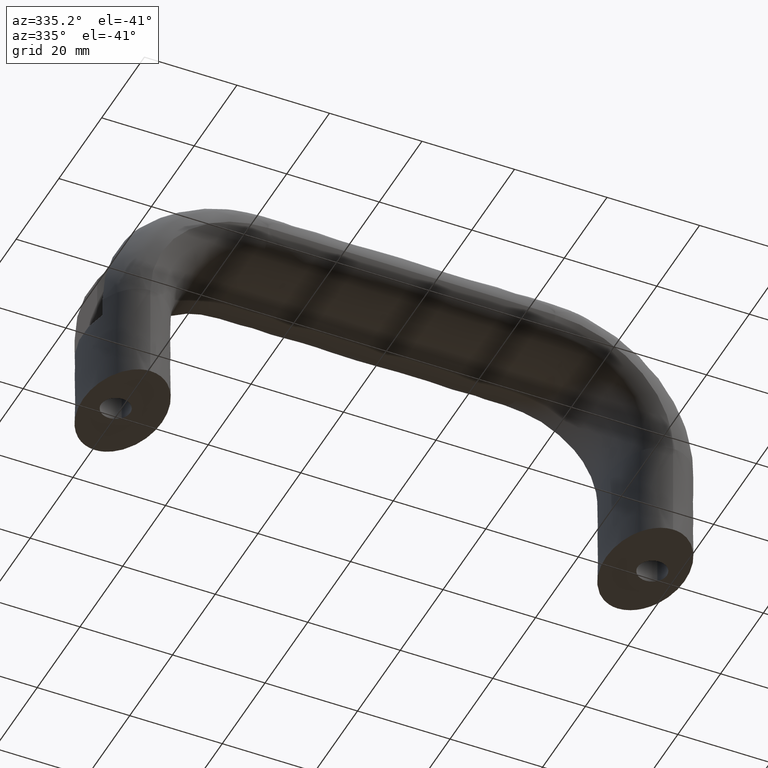
[diagram: clean part render]
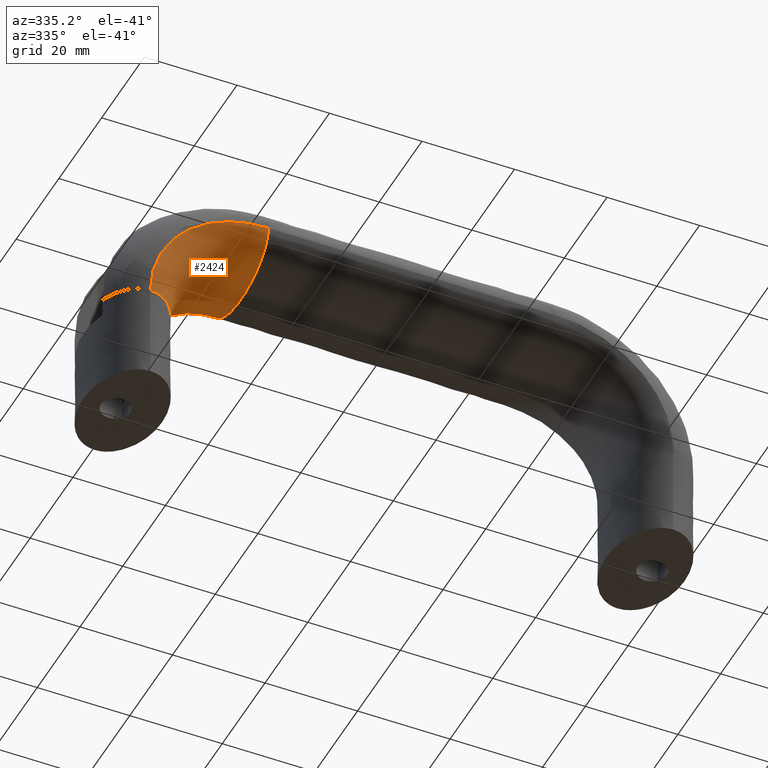
[diagram: same view with one face highlighted and labeled with its STEP entity id]
A machine part, auxiliary view. The second image highlights one B-rep face of the part: STEP entity #2424.
In plain terms, the highlighted face is a freeform B-spline surface patch.
Its self-contained STEP definition (entity closure, byte-faithful):
#1974=CARTESIAN_POINT('',(27.0,13.0,46.500000000000000));
#1975=VERTEX_POINT('',#1974);
#1981=CARTESIAN_POINT('',(27.0,-13.0,46.500000000000000));
#1982=VERTEX_POINT('',#1981);
#2069=CARTESIAN_POINT('',(27.0,-13.0,46.500000000000000));
#2070=CARTESIAN_POINT('',(27.0,-13.0,45.387352601853600));
#2071=CARTESIAN_POINT('',(27.0,-12.661644796688099,44.275142982946100));
#2072=CARTESIAN_POINT('',(27.0,-11.359223048605340,42.219238666847353));
#2073=CARTESIAN_POINT('',(27.0,-10.395668951176340,41.276352880213253));
#2074=CARTESIAN_POINT('',(27.0,-6.785826563922671,38.916071319316600));
#2075=CARTESIAN_POINT('',(27.0,-3.403392041388941,38.0));
#2076=CARTESIAN_POINT('',(27.0,3.403392041388945,38.0));
#2077=CARTESIAN_POINT('',(27.0,6.785826563922680,38.916071319316600));
#2078=CARTESIAN_POINT('',(27.0,10.395668951176340,41.276352880213253));
#2079=CARTESIAN_POINT('',(27.0,11.359223048605340,42.219238666847353));
#2080=CARTESIAN_POINT('',(27.0,12.661644796688099,44.275142982946150));
#2081=CARTESIAN_POINT('',(27.0,13.0,45.387352601853600));
#2082=CARTESIAN_POINT('',(27.0,13.0,46.500000000000000));
#2083=B_SPLINE_CURVE_WITH_KNOTS('',3,(#2069,#2070,#2071,#2072,#2073,#2074,#2075,#2076,#2077,#2078,#2079,#2080,#2081,#2082),.UNSPECIFIED.,.F.,.U.,(4,2,2,2,2,2,4),(0.0,0.062500000000000,0.125000000000000,0.250000000000000,0.375000000000000,0.437500000000000,0.500000000000000),.UNSPECIFIED.);
#2084=EDGE_CURVE('',#1982,#1975,#2083,.T.);
#2216=CARTESIAN_POINT('',(1.499999999999997,13.0,21.0));
#2217=VERTEX_POINT('',#2216);
#2218=CARTESIAN_POINT('',(1.499999999999995,13.0,21.0));
#2219=CARTESIAN_POINT('',(1.499999999999995,13.0,24.338487965230129));
#2220=CARTESIAN_POINT('',(2.163696795447097,13.0,27.674571173055529));
#2221=CARTESIAN_POINT('',(4.718447046477275,13.0,33.842283877564071));
#2222=CARTESIAN_POINT('',(6.608495612154606,13.0,36.670941452656983));
#2223=CARTESIAN_POINT('',(11.329058547331501,13.0,41.391504387857033));
#2224=CARTESIAN_POINT('',(14.157716122457829,13.0,43.281552953528532));
#2225=CARTESIAN_POINT('',(20.325428826922629,13.0,45.836303204547150));
#2226=CARTESIAN_POINT('',(23.661512034786298,13.0,46.500000000000000));
#2227=CARTESIAN_POINT('',(27.0,13.0,46.500000000000000));
#2228=B_SPLINE_CURVE_WITH_KNOTS('',3,(#2218,#2219,#2220,#2221,#2222,#2223,#2224,#2225,#2226,#2227),.UNSPECIFIED.,.F.,.U.,(4,2,2,2,4),(0.114061865830815,0.168452139364120,0.222842412897425,0.277232686430730,0.331622959964035),.UNSPECIFIED.);
#2229=EDGE_CURVE('',#2217,#1975,#2228,.T.);
#2245=CARTESIAN_POINT('',(1.499999999999996,-13.0,21.0));
#2246=VERTEX_POINT('',#2245);
#2258=CARTESIAN_POINT('',(1.499999999999996,-13.0,21.0));
#2259=CARTESIAN_POINT('',(1.499999999999996,-13.0,24.338487965230119));
#2260=CARTESIAN_POINT('',(2.163696795446736,-13.0,27.674571173055519));
#2261=CARTESIAN_POINT('',(4.718447046477645,-13.0,33.842283877564078));
#2262=CARTESIAN_POINT('',(6.608495612154606,-13.0,36.670941452656983));
#2263=CARTESIAN_POINT('',(11.329058547331501,-13.0,41.391504387857019));
#2264=CARTESIAN_POINT('',(14.157716122460730,-13.0,43.281552953528518));
#2265=CARTESIAN_POINT('',(20.325428826919730,-13.0,45.836303204547150));
#2266=CARTESIAN_POINT('',(23.661512034788469,-13.0,46.500000000000000));
#2267=CARTESIAN_POINT('',(27.0,-13.0,46.500000000000000));
#2268=B_SPLINE_CURVE_WITH_KNOTS('',3,(#2258,#2259,#2260,#2261,#2262,#2263,#2264,#2265,#2266,#2267),.UNSPECIFIED.,.F.,.U.,(4,2,2,2,4),(0.114061865830815,0.168452139364120,0.222842412897425,0.277232686430730,0.331622959964035),.UNSPECIFIED.);
#2269=EDGE_CURVE('',#2246,#1982,#2268,.T.);
#2275=CARTESIAN_POINT('',(1.232964624444863,-13.0,20.595186176466129));
#2276=CARTESIAN_POINT('',(1.321978819336903,-12.999001277163620,20.596584636787920));
#2277=CARTESIAN_POINT('',(2.523570531962558,-13.027045414409230,20.615462281360671));
#2278=CARTESIAN_POINT('',(4.837471083550229,-12.323036565618350,20.651814889098741));
#2279=CARTESIAN_POINT('',(6.723728010842493,-10.395617706442160,20.681448988162352));
#2280=CARTESIAN_POINT('',(9.083928680683410,-6.785826563922671,20.718528995370558));
#2281=CARTESIAN_POINT('',(10.0,-3.403392041388941,20.732920962781591));
#2282=CARTESIAN_POINT('',(10.0,3.403392041388945,20.732920962781591));
#2283=CARTESIAN_POINT('',(9.083928680683400,6.785826563922680,20.718528995370558));
#2284=CARTESIAN_POINT('',(6.723728010842484,10.395617706442160,20.681448988162352));
#2285=CARTESIAN_POINT('',(4.837471083550216,12.323036565618350,20.651814889097690));
#2286=CARTESIAN_POINT('',(2.523570531962559,13.027045414409240,20.615462281360710));
#2287=CARTESIAN_POINT('',(1.321978819336902,12.999001277163620,20.596584636787920));
#2288=CARTESIAN_POINT('',(1.232964624444863,13.0,20.595186176466129));
#2289=CARTESIAN_POINT('',(1.233479681402849,-13.0,20.730122251449998));
#2290=CARTESIAN_POINT('',(1.322492096991225,-12.999001277163620,20.731054564778109));
#2291=CARTESIAN_POINT('',(2.524059791014692,-13.027045414409240,20.743639748185991));
#2292=CARTESIAN_POINT('',(4.837914090072269,-12.323036565618350,20.767874987597121));
#2293=CARTESIAN_POINT('',(6.724133312997660,-10.395617706442160,20.787631190252881));
#2294=CARTESIAN_POINT('',(9.084286804815980,-6.785826563922671,20.812351365997412));
#2295=CARTESIAN_POINT('',(10.000339812794071,-3.403392041388941,20.821946077285141));
#2296=CARTESIAN_POINT('',(10.000339812794071,3.403392041388945,20.821946077285141));
#2297=CARTESIAN_POINT('',(9.084286804815971,6.785826563922680,20.812351365997412));
#2298=CARTESIAN_POINT('',(6.724133312997653,10.395617706442160,20.787631190252881));
#2299=CARTESIAN_POINT('',(4.837914090072255,12.323036565618350,20.767874987596400));
#2300=CARTESIAN_POINT('',(2.524059791014693,13.027045414409240,20.743639748186020));
#2301=CARTESIAN_POINT('',(1.322492096991225,12.999001277163620,20.731054564778098));
#2302=CARTESIAN_POINT('',(1.233479681402849,13.0,20.730122251449998));
#2303=CARTESIAN_POINT('',(1.206122981646883,-13.0,24.238309881202060));
#2304=CARTESIAN_POINT('',(1.295229903047340,-12.999001277163620,24.227122891985609));
#2305=CARTESIAN_POINT('',(2.498073319451271,-13.027045414409230,24.076111094956630));
#2306=CARTESIAN_POINT('',(4.814384272203948,-12.323036565618350,23.785308256712501));
#2307=CARTESIAN_POINT('',(6.702606122271325,-10.395617706442160,23.548250156814749));
#2308=CARTESIAN_POINT('',(9.065265424327974,-6.785826563922671,23.251628483449359));
#2309=CARTESIAN_POINT('',(9.982291019479703,-3.403392041388941,23.136499879713330));
#2310=CARTESIAN_POINT('',(9.982291019479703,3.403392041388945,23.136499879713330));
#2311=CARTESIAN_POINT('',(9.065265424329533,6.785826563922680,23.251628483450901));
#2312=CARTESIAN_POINT('',(6.702606122271267,10.395617706442160,23.548250156814440));
#2313=CARTESIAN_POINT('',(4.814384272203266,12.323036565618340,23.785308256715641));
#2314=CARTESIAN_POINT('',(2.498073319451431,13.027045414409240,24.076111094956840));
#2315=CARTESIAN_POINT('',(1.295229903047659,12.999001277163620,24.227122891985609));
#2316=CARTESIAN_POINT('',(1.206122981647196,13.0,24.238309881202060));
#2317=CARTESIAN_POINT('',(2.574424561504448,-13.0,31.116963914495930));
#2318=CARTESIAN_POINT('',(2.658804580421831,-12.999001277163620,31.082014088702088));
#2319=CARTESIAN_POINT('',(3.797840119251112,-13.027045414409230,30.610230671659480));
#2320=CARTESIAN_POINT('',(5.991276486928670,-12.323036565618350,29.701719155256281));
#2321=CARTESIAN_POINT('',(7.779332823344952,-10.395617706442151,28.961114231614719));
#2322=CARTESIAN_POINT('',(10.016658874675469,-6.785826563922669,28.034423804886860));
#2323=CARTESIAN_POINT('',(10.885038522964869,-3.403392041388940,27.674744845096100));
#2324=CARTESIAN_POINT('',(10.885038522964869,3.403392041388945,27.674744845096100));
#2325=CARTESIAN_POINT('',(10.016658874672890,6.785826563922683,28.034423804879239));
#2326=CARTESIAN_POINT('',(7.779332823345706,10.395617706442151,28.961114231616211));
#2327=CARTESIAN_POINT('',(5.991276486929371,12.323036565618340,29.701719155255990));
#2328=CARTESIAN_POINT('',(3.797840119249886,13.027045414409249,30.610230671657909));
#2329=CARTESIAN_POINT('',(2.658804580421023,12.999001277163620,31.082014088702149));
#2330=CARTESIAN_POINT('',(2.574424561503700,13.0,31.116963914495930));
#2331=CARTESIAN_POINT('',(8.305599756709656,-13.0,39.694394238583172));
#2332=CARTESIAN_POINT('',(8.370180992478209,-12.999001277163620,39.629813023558327));
#2333=CARTESIAN_POINT('',(9.241955182928800,-13.027045414409230,38.758039113123729));
#2334=CARTESIAN_POINT('',(10.920727397275330,-12.323036565618350,37.079267438011613));
#2335=CARTESIAN_POINT('',(12.289237256734239,-10.395617706442160,35.710758018116252));
#2336=CARTESIAN_POINT('',(14.001600954511680,-6.785826563922671,33.998394870353053));
#2337=CARTESIAN_POINT('',(14.666225489122390,-3.403392041388940,33.333770549227047));
#2338=CARTESIAN_POINT('',(14.666225489122390,3.403392041388945,33.333770549227047));
#2339=CARTESIAN_POINT('',(14.001600954513361,6.785826563922679,33.998394870355682));
#2340=CARTESIAN_POINT('',(12.289237256734410,10.395617706442160,35.710758018115747));
#2341=CARTESIAN_POINT('',(10.920727397274479,12.323036565618350,37.079267438006823));
#2342=CARTESIAN_POINT('',(9.241955182929704,13.027045414409240,38.758039113124461));
#2343=CARTESIAN_POINT('',(8.370180992478739,12.999001277163620,39.629813023558313));
#2344=CARTESIAN_POINT('',(8.305599756710146,13.0,39.694394238583151));
#2345=CARTESIAN_POINT('',(16.883029588576310,-13.0,45.425524624290659));
#2346=CARTESIAN_POINT('',(16.917979436814321,-12.999001277163620,45.341144780914753));
#2347=CARTESIAN_POINT('',(17.389763156829510,-13.027045414409240,44.202111611699657));
#2348=CARTESIAN_POINT('',(18.298275256656421,-12.323036565618350,42.008679807167503));
#2349=CARTESIAN_POINT('',(19.038880655906901,-10.395617706442160,40.220627190578732));
#2350=CARTESIAN_POINT('',(19.965571677740311,-6.785826563922671,37.983305793716191));
#2351=CARTESIAN_POINT('',(20.325250868503510,-3.403392041388941,37.114927951971680));
#2352=CARTESIAN_POINT('',(20.325250868503510,3.403392041388946,37.114927951971680));
#2353=CARTESIAN_POINT('',(19.965571677739241,6.785826563922683,37.983305793716809));
#2354=CARTESIAN_POINT('',(19.038880655905729,10.395617706442160,40.220627190578597));
#2355=CARTESIAN_POINT('',(18.298275256657568,12.323036565618350,42.008679807178140));
#2356=CARTESIAN_POINT('',(17.389763156828881,13.027045414409240,44.202111611699387));
#2357=CARTESIAN_POINT('',(16.917979436814001,12.999001277163620,45.341144780914767));
#2358=CARTESIAN_POINT('',(16.883029588576019,13.0,45.425524624290667));
#2359=CARTESIAN_POINT('',(23.761691427856899,-13.0,46.793887256798811));
#2360=CARTESIAN_POINT('',(23.772878412551130,-12.999001277163620,46.704780300028922));
#2361=CARTESIAN_POINT('',(23.923890148535161,-13.027045414409230,45.501936406175602));
#2362=CARTESIAN_POINT('',(24.214692869223629,-12.323036565618350,43.185624534013023));
#2363=CARTESIAN_POINT('',(24.451750873292241,-10.395617706442160,41.297401934436003));
#2364=CARTESIAN_POINT('',(24.748372426752951,-6.785826563922671,38.934741694558298));
#2365=CARTESIAN_POINT('',(24.863500983947901,-3.403392041388941,38.017715735414768));
#2366=CARTESIAN_POINT('',(24.863500983947901,3.403392041388945,38.017715735414768));
#2367=CARTESIAN_POINT('',(24.748372426751619,6.785826563922680,38.934741694562383));
#2368=CARTESIAN_POINT('',(24.451750873292330,10.395617706442160,41.297401934435179));
#2369=CARTESIAN_POINT('',(24.214692869224169,12.323036565618350,43.185624534006692));
#2370=CARTESIAN_POINT('',(23.923890148533818,13.027045414409240,45.501936406176718));
#2371=CARTESIAN_POINT('',(23.772878412550561,12.999001277163620,46.704780300028887));
#2372=CARTESIAN_POINT('',(23.761691427856380,13.0,46.793887256798797));
#2373=CARTESIAN_POINT('',(27.269877748548481,-13.0,46.766520318597152));
#2374=CARTESIAN_POINT('',(27.268945435220370,-12.999001277163620,46.677507903008767));
#2375=CARTESIAN_POINT('',(27.256360251812410,-13.027045414409230,45.475940208985300));
#2376=CARTESIAN_POINT('',(27.232125012401941,-12.323036565618350,43.162085909927718));
#2377=CARTESIAN_POINT('',(27.212368809746099,-10.395617706442160,41.275866687002363));
#2378=CARTESIAN_POINT('',(27.187648634001128,-6.785826563922671,38.915713195184019));
#2379=CARTESIAN_POINT('',(27.178053922714081,-3.403392041388941,37.999660187205933));
#2380=CARTESIAN_POINT('',(27.178053922714081,3.403392041388945,37.999660187205933));
#2381=CARTESIAN_POINT('',(27.187648634001491,6.785826563922680,38.915713195184033));
#2382=CARTESIAN_POINT('',(27.212368809746138,10.395617706442160,41.275866687002363));
#2383=CARTESIAN_POINT('',(27.232125012401760,12.323036565618350,43.162085909927747));
#2384=CARTESIAN_POINT('',(27.256360251812762,13.027045414409240,45.475940208985307));
#2385=CARTESIAN_POINT('',(27.268945435220520,12.999001277163620,46.677507903008767));
#2386=CARTESIAN_POINT('',(27.269877748548609,13.0,46.766520318597152));
#2387=CARTESIAN_POINT('',(27.404813823531661,-13.0,46.767035375555139));
#2388=CARTESIAN_POINT('',(27.403415363209859,-12.999001277163620,46.678021180663087));
#2389=CARTESIAN_POINT('',(27.384537718636999,-13.027045414409230,45.476429468037423));
#2390=CARTESIAN_POINT('',(27.348185110899880,-12.323036565618350,43.162528916449752));
#2391=CARTESIAN_POINT('',(27.318551011836171,-10.395617706442160,41.276271989157543));
#2392=CARTESIAN_POINT('',(27.281471004627310,-6.785826563922671,38.916071319316600));
#2393=CARTESIAN_POINT('',(27.267079037217272,-3.403392041388941,38.0));
#2394=CARTESIAN_POINT('',(27.267079037217272,3.403392041388945,38.0));
#2395=CARTESIAN_POINT('',(27.281471004627829,6.785826563922680,38.916071319316600));
#2396=CARTESIAN_POINT('',(27.318551011836220,10.395617706442160,41.276271989157529));
#2397=CARTESIAN_POINT('',(27.348185110899632,12.323036565618350,43.162528916449787));
#2398=CARTESIAN_POINT('',(27.384537718637500,13.027045414409240,45.476429468037452));
#2399=CARTESIAN_POINT('',(27.403415363210080,12.999001277163620,46.678021180663087));
#2400=CARTESIAN_POINT('',(27.404813823531860,13.0,46.767035375555139));
#2401=B_SPLINE_SURFACE_WITH_KNOTS('',3,3,((#2275,#2289,#2303,#2317,#2331,#2345,#2359,#2373,#2387),(#2276,#2290,#2304,#2318,#2332,#2346,#2360,#2374,#2388),(#2277,#2291,#2305,#2319,#2333,#2347,#2361,#2375,#2389),(#2278,#2292,#2306,#2320,#2334,#2348,#2362,#2376,#2390),(#2279,#2293,#2307,#2321,#2335,#2349,#2363,#2377,#2391),(#2280,#2294,#2308,#2322,#2336,#2350,#2364,#2378,#2392),(#2281,#2295,#2309,#2323,#2337,#2351,#2365,#2379,#2393),(#2282,#2296,#2310,#2324,#2338,#2352,#2366,#2380,#2394),(#2283,#2297,#2311,#2325,#2339,#2353,#2367,#2381,#2395),(#2284,#2298,#2312,#2326,#2340,#2354,#2368,#2382,#2396),(#2285,#2299,#2313,#2327,#2341,#2355,#2369,#2383,#2397),(#2286,#2300,#2314,#2328,#2342,#2356,#2370,#2384,#2398),(#2287,#2301,#2315,#2329,#2343,#2357,#2371,#2385,#2399),(#2288,#2302,#2316,#2330,#2344,#2358,#2372,#2386,#2400)),.UNSPECIFIED.,.F.,.F.,.U.,(4,1,1,2,2,2,1,1,4),(4,1,1,1,1,1,4),(0.0,0.400140751270273,5.401900142148683,10.403659533027090,20.407178314783909,30.410697096540730,35.412456487419142,40.414215878297547,40.814356629567833),(0.0,0.404811173933614,10.525090522273951,20.645369870614289,30.765649218954621,40.885928567294947,41.290739741228570),.UNSPECIFIED.);
#2402=ORIENTED_EDGE('',*,*,#2229,.T.);
#2403=ORIENTED_EDGE('',*,*,#2084,.F.);
#2404=ORIENTED_EDGE('',*,*,#2269,.F.);
#2405=CARTESIAN_POINT('',(1.499999999999999,-13.0,21.0));
#2406=CARTESIAN_POINT('',(2.612647398146385,-13.0,21.0));
#2407=CARTESIAN_POINT('',(3.724857017053885,-12.661644796688099,21.0));
#2408=CARTESIAN_POINT('',(5.780761333152650,-11.359223048605340,21.0));
#2409=CARTESIAN_POINT('',(6.723647119786779,-10.395668951176340,21.0));
#2410=CARTESIAN_POINT('',(9.083928680683410,-6.785826563922671,21.0));
#2411=CARTESIAN_POINT('',(10.0,-3.403392041388941,21.0));
#2412=CARTESIAN_POINT('',(10.0,3.403392041388945,21.0));
#2413=CARTESIAN_POINT('',(9.083928680683400,6.785826563922680,21.0));
#2414=CARTESIAN_POINT('',(6.723647119786770,10.395668951176340,21.0));
#2415=CARTESIAN_POINT('',(5.780761333152650,11.359223048605340,21.0));
#2416=CARTESIAN_POINT('',(3.724857017053877,12.661644796688099,21.0));
#2417=CARTESIAN_POINT('',(2.612647398146374,13.0,21.0));
#2418=CARTESIAN_POINT('',(1.499999999999985,13.0,21.0));
#2419=B_SPLINE_CURVE_WITH_KNOTS('',3,(#2405,#2406,#2407,#2408,#2409,#2410,#2411,#2412,#2413,#2414,#2415,#2416,#2417,#2418),.UNSPECIFIED.,.F.,.U.,(4,2,2,2,2,2,4),(0.199958338434570,0.274968753825413,0.349979169216256,0.499999999997942,0.650020830779629,0.725031246170472,0.800041661561315),.UNSPECIFIED.);
#2420=EDGE_CURVE('',#2246,#2217,#2419,.T.);
#2421=ORIENTED_EDGE('',*,*,#2420,.T.);
#2422=EDGE_LOOP('',(#2402,#2403,#2404,#2421));
#2423=FACE_OUTER_BOUND('',#2422,.T.);
#2424=ADVANCED_FACE('',(#2423),#2401,.T.);